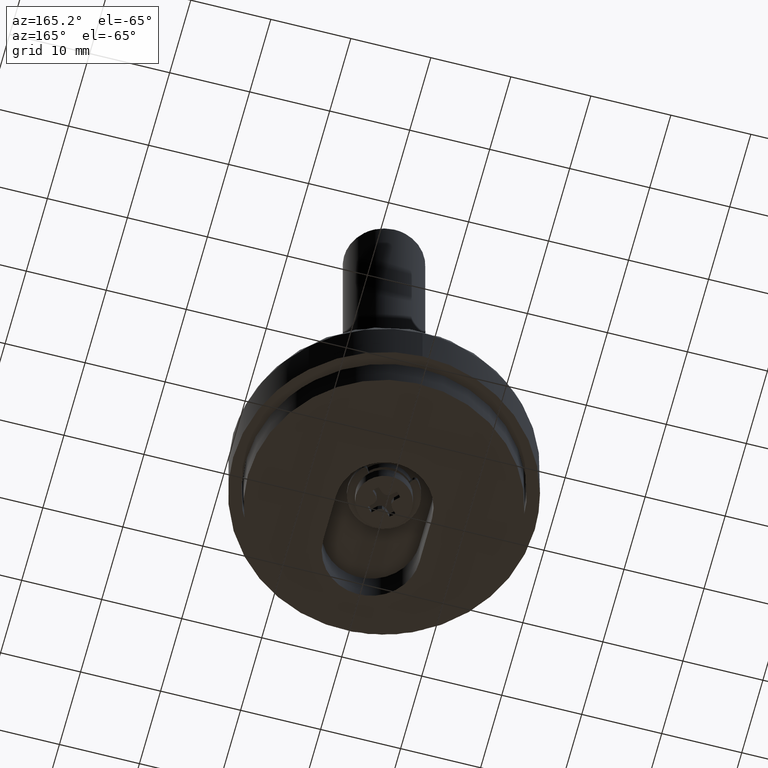
[diagram: clean part render]
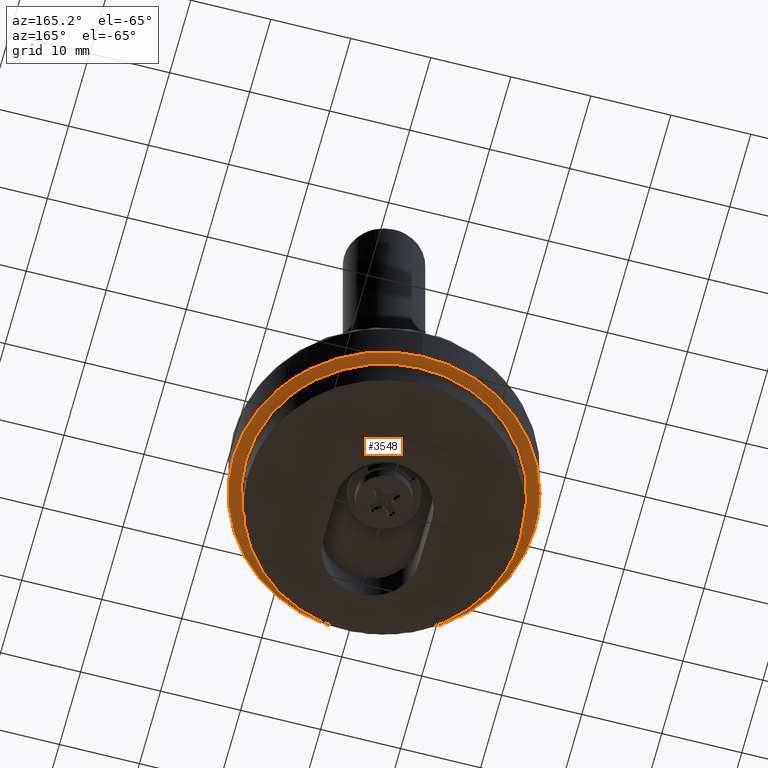
[diagram: same view with one face highlighted and labeled with its STEP entity id]
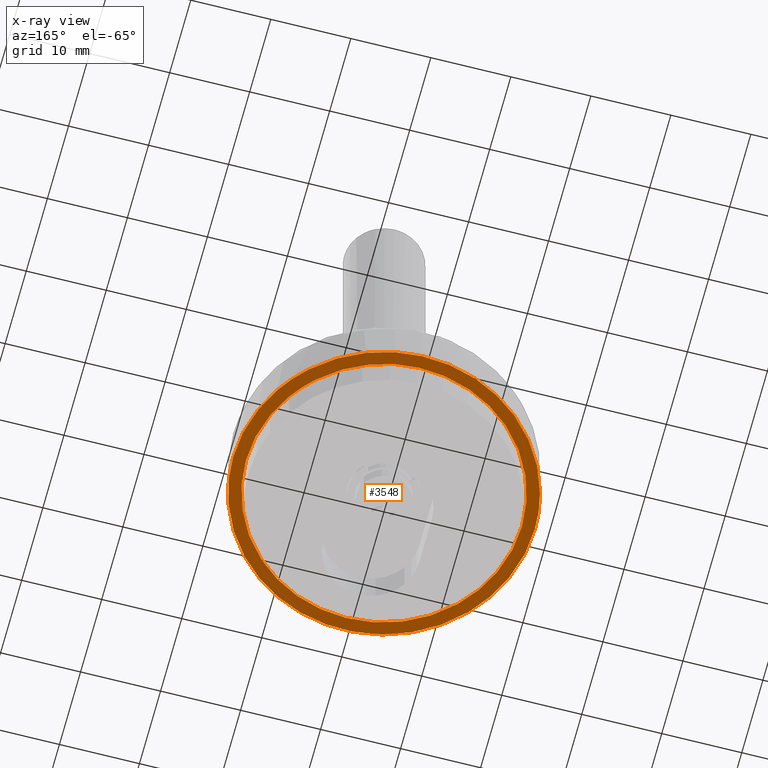
[diagram: x-ray of the same camera — body ghosted, the highlighted face saturated]
A machine part, auxiliary view. The second image highlights one B-rep face of the part: STEP entity #3548.
The next image is the same camera in x-ray: the body ghosted, the highlighted face saturated — about 0% of this face is hidden behind the body in this view.
In plain terms, the highlighted face is a freeform B-spline surface patch.
Its self-contained STEP definition (entity closure, byte-faithful):
#2850=CARTESIAN_POINT('',(11.896276468459959,12.491641452826180,4.0));
#2851=VERTEX_POINT('',#2850);
#2857=CARTESIAN_POINT('',(17.250000000000000,0.0,4.0));
#2858=VERTEX_POINT('',#2857);
#2859=CARTESIAN_POINT('',(17.250000000000000,0.0,4.0));
#2860=CARTESIAN_POINT('',(17.250000000000000,7.393082491338161,4.000000000000001));
#2861=CARTESIAN_POINT('',(11.896276468459957,12.491641452826187,4.0));
#2869=(BOUNDED_CURVE()B_SPLINE_CURVE(2,(#2859,#2860,#2861),.UNSPECIFIED.,.F.,.U.)B_SPLINE_CURVE_WITH_KNOTS((3,3),(0.500000000000000,0.628682987496016),.UNSPECIFIED.)CURVE()GEOMETRIC_REPRESENTATION_ITEM()RATIONAL_B_SPLINE_CURVE((1.0,0.849238502343042,0.853680524029052))REPRESENTATION_ITEM(''));
#2870=EDGE_CURVE('',#2858,#2851,#2869,.T.);
#2872=CARTESIAN_POINT('',(-17.250000000000000,0.0,4.0));
#2873=VERTEX_POINT('',#2872);
#2874=CARTESIAN_POINT('',(-17.250000000000000,0.0,4.0));
#2875=CARTESIAN_POINT('',(-17.250000000000004,-17.250000000000004,4.000000000000000));
#2876=CARTESIAN_POINT('',(0.0,-17.250000000000000,4.0));
#2877=CARTESIAN_POINT('',(17.250000000000004,-17.250000000000004,4.000000000000000));
#2878=CARTESIAN_POINT('',(17.250000000000000,0.0,4.0));
#2886=(BOUNDED_CURVE()B_SPLINE_CURVE(2,(#2874,#2875,#2876,#2877,#2878),.UNSPECIFIED.,.F.,.U.)B_SPLINE_CURVE_WITH_KNOTS((3,2,3),(0.0,0.250000000000000,0.500000000000000),.UNSPECIFIED.)CURVE()GEOMETRIC_REPRESENTATION_ITEM()RATIONAL_B_SPLINE_CURVE((1.0,0.707106781186548,1.0,0.707106781186548,1.0))REPRESENTATION_ITEM(''));
#2887=EDGE_CURVE('',#2873,#2858,#2886,.T.);
#2889=CARTESIAN_POINT('',(0.150516879316229,17.249343311233311,4.0));
#2890=VERTEX_POINT('',#2889);
#2891=CARTESIAN_POINT('',(0.150516879316229,17.249343311233314,4.000000000000001));
#2892=CARTESIAN_POINT('',(0.075259872188932,17.250000000000000,4.0));
#2893=CARTESIAN_POINT('',(0.0,17.250000000000000,4.0));
#2894=CARTESIAN_POINT('',(-17.250000000000004,17.250000000000004,4.000000000000000));
#2895=CARTESIAN_POINT('',(-17.250000000000000,0.0,4.0));
#2903=(BOUNDED_CURVE()B_SPLINE_CURVE(2,(#2891,#2892,#2893,#2894,#2895),.UNSPECIFIED.,.F.,.U.)B_SPLINE_CURVE_WITH_KNOTS((3,2,3),(0.748460267600344,0.750000000000000,1.0),.UNSPECIFIED.)CURVE()GEOMETRIC_REPRESENTATION_ITEM()RATIONAL_B_SPLINE_CURVE((0.996414402864379,0.998196091285414,1.0,0.707106781186548,1.0))REPRESENTATION_ITEM(''));
#2904=EDGE_CURVE('',#2890,#2873,#2903,.T.);
#2995=CARTESIAN_POINT('',(11.896276468459957,12.491641452826187,4.0));
#2996=CARTESIAN_POINT('',(6.962888092498132,17.189898911691547,4.000000000000001));
#2997=CARTESIAN_POINT('',(0.150516879316229,17.249343311233314,4.000000000000001));
#3005=(BOUNDED_CURVE()B_SPLINE_CURVE(2,(#2995,#2996,#2997),.UNSPECIFIED.,.F.,.U.)B_SPLINE_CURVE_WITH_KNOTS((3,3),(0.628682987496017,0.748460267600344),.UNSPECIFIED.)CURVE()GEOMETRIC_REPRESENTATION_ITEM()RATIONAL_B_SPLINE_CURVE((0.853680524029052,0.857815128657588,0.996414402864379))REPRESENTATION_ITEM(''));
#3006=EDGE_CURVE('',#2851,#2890,#3005,.T.);
#3104=CARTESIAN_POINT('',(0.164476952800990,18.849282408931760,4.0));
#3105=VERTEX_POINT('',#3104);
#3111=CARTESIAN_POINT('',(-18.850000000000001,0.0,4.0));
#3112=VERTEX_POINT('',#3111);
#3113=CARTESIAN_POINT('',(0.164476952800990,18.849282408931760,4.0));
#3114=CARTESIAN_POINT('',(0.082240041777686,18.850000000000001,4.000000000000000));
#3115=CARTESIAN_POINT('',(0.0,18.850000000000001,4.0));
#3116=CARTESIAN_POINT('',(-18.849999999999998,18.849999999999998,4.000000000000000));
#3117=CARTESIAN_POINT('',(-18.850000000000001,0.0,4.0));
#3125=(BOUNDED_CURVE()B_SPLINE_CURVE(2,(#3113,#3114,#3115,#3116,#3117),.UNSPECIFIED.,.F.,.U.)B_SPLINE_CURVE_WITH_KNOTS((3,2,3),(0.748460276126757,0.750000000000000,1.0),.UNSPECIFIED.)CURVE()GEOMETRIC_REPRESENTATION_ITEM()RATIONAL_B_SPLINE_CURVE((0.996414422596912,0.998196101274727,1.0,0.707106781186548,1.0))REPRESENTATION_ITEM(''));
#3126=EDGE_CURVE('',#3105,#3112,#3125,.T.);
#3128=CARTESIAN_POINT('',(18.850000000000001,0.0,4.0));
#3129=VERTEX_POINT('',#3128);
#3130=CARTESIAN_POINT('',(-18.850000000000001,0.0,4.0));
#3131=CARTESIAN_POINT('',(-18.849999999999998,-18.849999999999998,4.000000000000000));
#3132=CARTESIAN_POINT('',(0.0,-18.850000000000001,4.0));
#3133=CARTESIAN_POINT('',(18.849999999999998,-18.849999999999998,4.000000000000000));
#3134=CARTESIAN_POINT('',(18.850000000000001,0.0,4.0));
#3142=(BOUNDED_CURVE()B_SPLINE_CURVE(2,(#3130,#3131,#3132,#3133,#3134),.UNSPECIFIED.,.F.,.U.)B_SPLINE_CURVE_WITH_KNOTS((3,2,3),(0.0,0.250000000000000,0.500000000000000),.UNSPECIFIED.)CURVE()GEOMETRIC_REPRESENTATION_ITEM()RATIONAL_B_SPLINE_CURVE((1.0,0.707106781186548,1.0,0.707106781186548,1.0))REPRESENTATION_ITEM(''));
#3143=EDGE_CURVE('',#3112,#3129,#3142,.T.);
#3145=CARTESIAN_POINT('',(12.999699259378190,13.650286413321940,4.0));
#3146=VERTEX_POINT('',#3145);
#3147=CARTESIAN_POINT('',(18.850000000000001,0.0,4.0));
#3148=CARTESIAN_POINT('',(18.849999999999998,8.078817603721243,4.0));
#3149=CARTESIAN_POINT('',(12.999699259378181,13.650286413321943,4.0));
#3157=(BOUNDED_CURVE()B_SPLINE_CURVE(2,(#3147,#3148,#3149),.UNSPECIFIED.,.F.,.U.)B_SPLINE_CURVE_WITH_KNOTS((3,3),(0.500000000000000,0.628682986478521),.UNSPECIFIED.)CURVE()GEOMETRIC_REPRESENTATION_ITEM()RATIONAL_B_SPLINE_CURVE((1.0,0.849238503535112,0.853680523958806))REPRESENTATION_ITEM(''));
#3158=EDGE_CURVE('',#3129,#3146,#3157,.T.);
#3200=CARTESIAN_POINT('',(12.999699259378183,13.650286413321945,4.000000000000001));
#3201=CARTESIAN_POINT('',(7.608720882478312,18.784324681060177,4.000000000000001));
#3202=CARTESIAN_POINT('',(0.164476952800990,18.849282408931760,4.0));
#3210=(BOUNDED_CURVE()B_SPLINE_CURVE(2,(#3200,#3201,#3202),.UNSPECIFIED.,.F.,.U.)B_SPLINE_CURVE_WITH_KNOTS((3,3),(0.628682986478522,0.748460276126757),.UNSPECIFIED.)CURVE()GEOMETRIC_REPRESENTATION_ITEM()RATIONAL_B_SPLINE_CURVE((0.853680523958806,0.857815127774526,0.996414422596912))REPRESENTATION_ITEM(''));
#3211=EDGE_CURVE('',#3146,#3105,#3210,.T.);
#3531=CARTESIAN_POINT('',(-20.733115280830710,20.732362534198550,4.0));
#3532=CARTESIAN_POINT('',(20.733115954959239,20.732362534198550,4.0));
#3533=CARTESIAN_POINT('',(-20.733115280830710,-20.733080144021301,4.0));
#3534=CARTESIAN_POINT('',(20.733115954959239,-20.733080144021301,4.0));
#3535=B_SPLINE_SURFACE_WITH_KNOTS('',1,1,((#3531,#3533),(#3532,#3534)),.UNSPECIFIED.,.F.,.F.,.U.,(2,2),(2,2),(0.0,41.466231235789948),(0.0,41.465442678219851),.UNSPECIFIED.);
#3536=ORIENTED_EDGE('',*,*,#3126,.F.);
#3537=ORIENTED_EDGE('',*,*,#3211,.F.);
#3538=ORIENTED_EDGE('',*,*,#3158,.F.);
#3539=ORIENTED_EDGE('',*,*,#3143,.F.);
#3540=EDGE_LOOP('',(#3536,#3537,#3538,#3539));
#3541=FACE_OUTER_BOUND('',#3540,.T.);
#3542=ORIENTED_EDGE('',*,*,#2887,.T.);
#3543=ORIENTED_EDGE('',*,*,#2870,.T.);
#3544=ORIENTED_EDGE('',*,*,#3006,.T.);
#3545=ORIENTED_EDGE('',*,*,#2904,.T.);
#3546=EDGE_LOOP('',(#3542,#3543,#3544,#3545));
#3547=FACE_BOUND('',#3546,.T.);
#3548=ADVANCED_FACE('',(#3541,#3547),#3535,.T.);